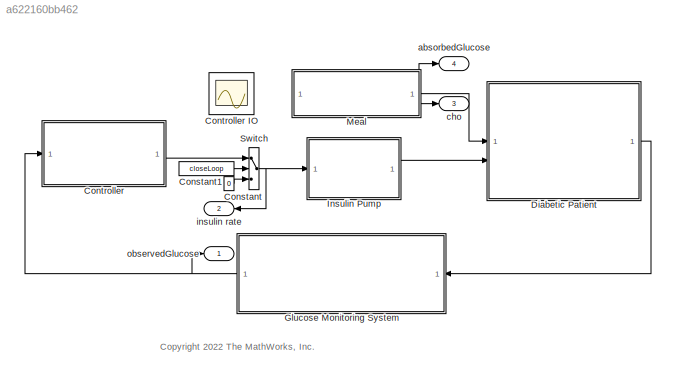
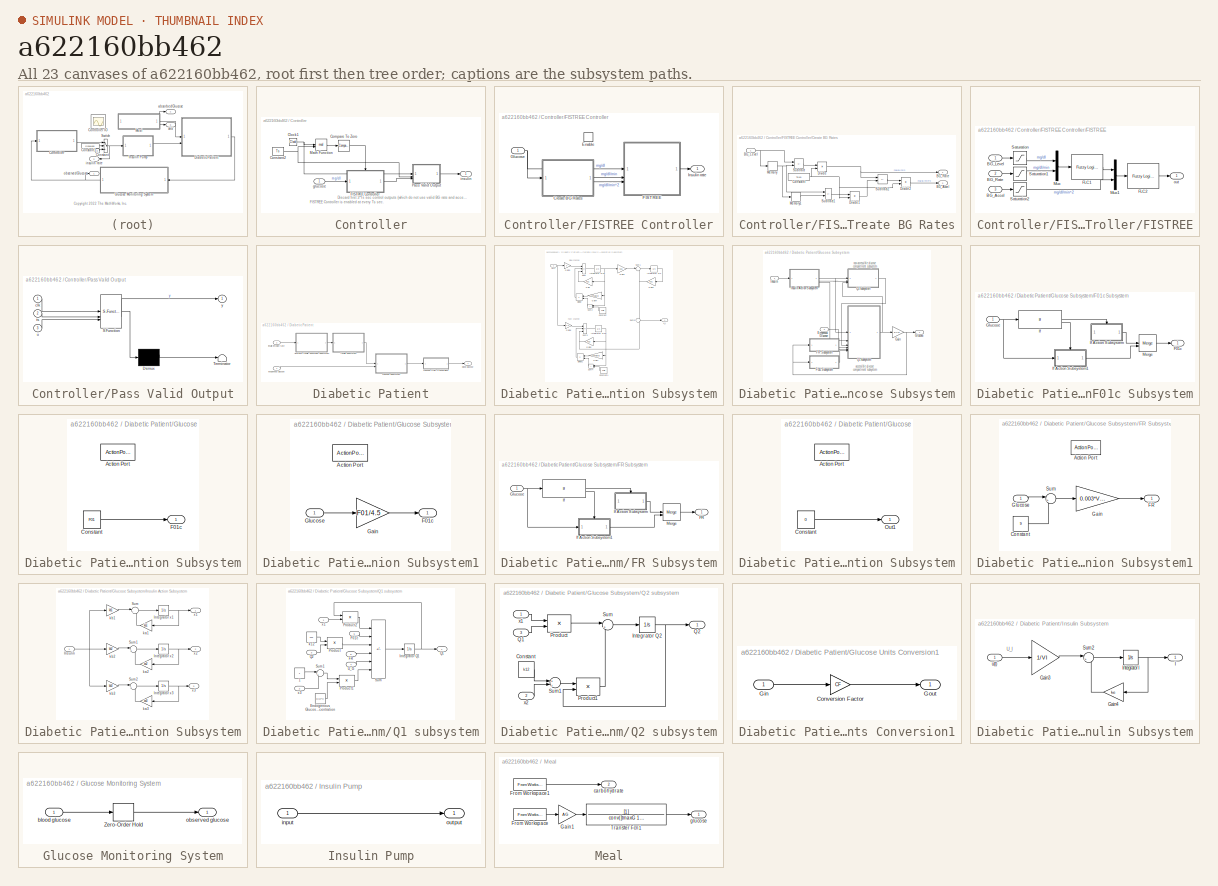
[diagram: thumbnail index - all 23 canvases of the model, root first then tree order]
MODEL slx_a622160bb462
KIND model
CONFIG AbsTol = auto
CONFIG EnableMultiTasking = on
CONFIG FixedStep = auto
CONFIG MaxStep = 100
CONFIG MinStep = auto
CONFIG PostLoadFcn = load warmStart\nWeight = 70;\nTs = 300;\ncloseLoop = 0;
CONFIG RelTol = 1e-6
CONFIG SampleTimeConstraint = Unconstrained
CONFIG SolverName = ode45
CONFIG StartTime = 0.0
CONFIG StopTime = 86400
BLOCK [Constant] Constant
  Value = 0
BLOCK [Constant] Constant1
  Value = closeLoop
BLOCK [SubSystem] Controller
BLOCK [Scope] Controller IO
  Floating = on
  NumInputPorts = 1
  ScopeSpecificationString = Simulink.scopes.TimeScopeBlockCfg('CurrentConfiguration', extmgr.ConfigurationSet(extmgr.Configuration('Core','General UI',true),extmgr.Configuration('Core','Source UI',true),extmgr.Configuration('Sources','WiredSimulink',true,'DataLoggingVariableName','ScopeData1'),extmgr.Configuration('Visuals','Time Domain',true,'SerializedDisplays',{struct('MinYLimReal','46.95353','MaxYLimReal','659.33506','YL...<+2745ch>
BLOCK [Clock] Controller/Clock1
BLOCK [Reference] Controller/Compare To Zero  REF=simulink/Logic and Bit
Operations/Compare
To Zero
  SourceBlock = simulink/Logic and Bit\nOperations/Compare\nTo Zero
  SourceType = Compare To Zero
BLOCK [Constant] Controller/Constant2
  Value = Ts
BLOCK [SubSystem] Controller/FISTREE Controller
  TreatAsAtomicUnit = on
BLOCK [SubSystem] Controller/FISTREE Controller/Create BG Rates
BLOCK [Outport] Controller/FISTREE Controller/Create BG Rates/BG_Accel
  Port = 2
BLOCK [Inport] Controller/FISTREE Controller/Create BG Rates/BG_Level
BLOCK [Outport] Controller/FISTREE Controller/Create BG Rates/BG_Rate
BLOCK [Constant] Controller/FISTREE Controller/Create BG Rates/Constant
  Value = Ts/60
BLOCK [Product] Controller/FISTREE Controller/Create BG Rates/Divide
  Inputs = */
BLOCK [Product] Controller/FISTREE Controller/Create BG Rates/Divide1
  Inputs = */
BLOCK [Product] Controller/FISTREE Controller/Create BG Rates/Divide2
  Inputs = */
BLOCK [Memory] Controller/FISTREE Controller/Create BG Rates/Memory
  InheritSampleTime = on
BLOCK [Memory] Controller/FISTREE Controller/Create BG Rates/Memory1
  InheritSampleTime = on
BLOCK [Sum] Controller/FISTREE Controller/Create BG Rates/Subtract
  IconShape = rectangular
  Inputs = +-
BLOCK [Sum] Controller/FISTREE Controller/Create BG Rates/Subtract1
  IconShape = rectangular
  Inputs = +-
BLOCK [Sum] Controller/FISTREE Controller/Create BG Rates/Subtract2
  IconShape = rectangular
  Inputs = +-
BLOCK [EnablePort] Controller/FISTREE Controller/Enable
BLOCK [SubSystem] Controller/FISTREE Controller/FISTREE
BLOCK [Inport] Controller/FISTREE Controller/FISTREE/BG_Accel
  Port = 3
BLOCK [Inport] Controller/FISTREE Controller/FISTREE/BG_Level
BLOCK [Inport] Controller/FISTREE Controller/FISTREE/BG_Rate
  Port = 2
BLOCK [Reference] Controller/FISTREE Controller/FISTREE/FLC1  REF=fuzblock/Fuzzy Logic   (lib defined in mdl_858b3b3e7478)
Controller
  SourceBlock = fuzblock/Fuzzy Logic \nController
  SourceType = Fuzzy Inference System
BLOCK [Reference] Controller/FISTREE Controller/FISTREE/FLC2  REF=fuzblock/Fuzzy Logic   (lib defined in mdl_858b3b3e7478)
Controller
  SourceBlock = fuzblock/Fuzzy Logic \nController
  SourceType = Fuzzy Inference System
BLOCK [Mux] Controller/FISTREE Controller/FISTREE/Mux
  DisplayOption = bar
  Inputs = 2
BLOCK [Mux] Controller/FISTREE Controller/FISTREE/Mux1
  DisplayOption = bar
  Inputs = 2
BLOCK [Saturate] Controller/FISTREE Controller/FISTREE/Saturation
  LinearizeAsGain = off
  LowerLimit = fisT.FIS(1).Inputs(1).Range(1)
  UpperLimit = fisT.FIS(1).Inputs(1).Range(2)
  ZeroCross = off
BLOCK [Saturate] Controller/FISTREE Controller/FISTREE/Saturation1
  LinearizeAsGain = off
  LowerLimit = fisT.FIS(1).Inputs(2).Range(1)
  UpperLimit = fisT.FIS(1).Inputs(2).Range(2)
  ZeroCross = off
BLOCK [Saturate] Controller/FISTREE Controller/FISTREE/Saturation2
  LinearizeAsGain = off
  LowerLimit = fisT.FIS(2).Inputs(2).Range(1)
  UpperLimit = fisT.FIS(2).Inputs(2).Range(2)
  ZeroCross = off
BLOCK [Outport] Controller/FISTREE Controller/FISTREE/out
BLOCK [Inport] Controller/FISTREE Controller/Glucose
BLOCK [Outport] Controller/FISTREE Controller/Insulin rate
BLOCK [Math] Controller/Math Function
  Operator = mod
BLOCK [SubSystem] Controller/Pass Valid Output
  ErrorFcn = Stateflow.Translate.translate
  PermitHierarchicalResolution = ExplicitOnly
  SFBlockType = MATLAB Function
  TreatAsAtomicUnit = on
BLOCK [Demux] Controller/Pass Valid Output/ Demux 
  Outputs = 1
BLOCK [S-Function] Controller/Pass Valid Output/ SFunction 
  EnableBusSupport = off
  FunctionName = sf_sfun
  PortCounts = [3 2]
  SFcnIsStateOwnerBlock = off
  SFunctionDeploymentMode = off
  Tag = Stateflow S-Function 5
BLOCK [Terminator] Controller/Pass Valid Output/ Terminator 
BLOCK [Inport] Controller/Pass Valid Output/clk
BLOCK [Inport] Controller/Pass Valid Output/ts
  Port = 2
BLOCK [Inport] Controller/Pass Valid Output/u
  Port = 3
BLOCK [Outport] Controller/Pass Valid Output/y
BLOCK [Inport] Controller/glucose
BLOCK [Outport] Controller/insulin
BLOCK [SubSystem] Diabetic Patient
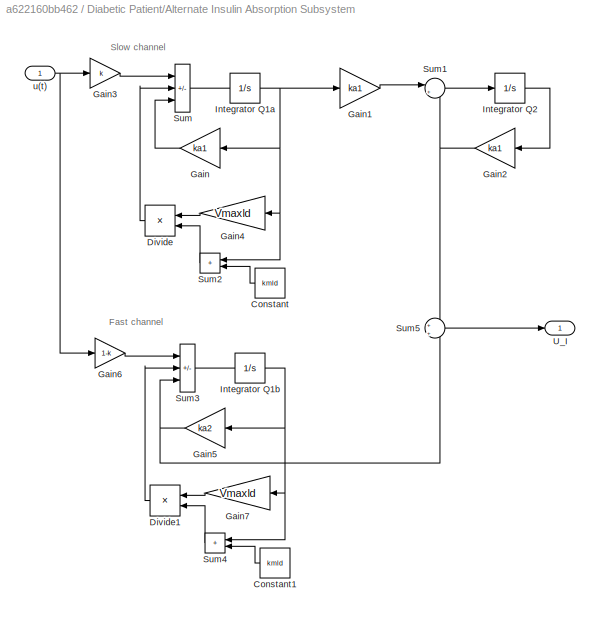
BLOCK [SubSystem] Diabetic Patient/Alternate Insulin Absorption Subsystem
BLOCK [Constant] Diabetic Patient/Alternate Insulin Absorption Subsystem/Constant
  Value = kmld
BLOCK [Constant] Diabetic Patient/Alternate Insulin Absorption Subsystem/Constant1
  Value = kmld
BLOCK [Product] Diabetic Patient/Alternate Insulin Absorption Subsystem/Divide
  Inputs = */
BLOCK [Product] Diabetic Patient/Alternate Insulin Absorption Subsystem/Divide1
  Inputs = */
BLOCK [Gain] Diabetic Patient/Alternate Insulin Absorption Subsystem/Gain
  Gain = ka1
  OutDataTypeStr = Inherit: Same as input
  ParamDataTypeStr = Inherit: Same as input
  SaturateOnIntegerOverflow = on
BLOCK [Gain] Diabetic Patient/Alternate Insulin Absorption Subsystem/Gain1
  Gain = ka1
  OutDataTypeStr = Inherit: Same as input
  ParamDataTypeStr = Inherit: Same as input
  SaturateOnIntegerOverflow = on
BLOCK [Gain] Diabetic Patient/Alternate Insulin Absorption Subsystem/Gain2
  Gain = ka1
  OutDataTypeStr = Inherit: Same as input
  ParamDataTypeStr = Inherit: Same as input
  SaturateOnIntegerOverflow = on
BLOCK [Gain] Diabetic Patient/Alternate Insulin Absorption Subsystem/Gain3
  Gain = k
BLOCK [Gain] Diabetic Patient/Alternate Insulin Absorption Subsystem/Gain4
  Gain = Vmaxld
  OutDataTypeStr = Inherit: Same as input
  ParamDataTypeStr = Inherit: Same as input
  SaturateOnIntegerOverflow = on
BLOCK [Gain] Diabetic Patient/Alternate Insulin Absorption Subsystem/Gain5
  Gain = ka2
  OutDataTypeStr = Inherit: Same as input
  ParamDataTypeStr = Inherit: Same as input
  SaturateOnIntegerOverflow = on
BLOCK [Gain] Diabetic Patient/Alternate Insulin Absorption Subsystem/Gain6
  Gain = 1-k
BLOCK [Gain] Diabetic Patient/Alternate Insulin Absorption Subsystem/Gain7
  Gain = Vmaxld
  OutDataTypeStr = Inherit: Same as input
  ParamDataTypeStr = Inherit: Same as input
  SaturateOnIntegerOverflow = on
BLOCK [Integrator] Diabetic Patient/Alternate Insulin Absorption Subsystem/Integrator Q1a
  InitialCondition = warmStart(3).values
BLOCK [Integrator] Diabetic Patient/Alternate Insulin Absorption Subsystem/Integrator Q1b
  InitialCondition = warmStart(4).values
BLOCK [Integrator] Diabetic Patient/Alternate Insulin Absorption Subsystem/Integrator Q2
  InitialCondition = warmStart(5).values
BLOCK [Sum] Diabetic Patient/Alternate Insulin Absorption Subsystem/Sum
  IconShape = rectangular
  Inputs = +--
  SaturateOnIntegerOverflow = on
BLOCK [Sum] Diabetic Patient/Alternate Insulin Absorption Subsystem/Sum1
  Inputs = |+-
  SaturateOnIntegerOverflow = on
BLOCK [Sum] Diabetic Patient/Alternate Insulin Absorption Subsystem/Sum2
  IconShape = rectangular
BLOCK [Sum] Diabetic Patient/Alternate Insulin Absorption Subsystem/Sum3
  IconShape = rectangular
  Inputs = +--
  SaturateOnIntegerOverflow = on
BLOCK [Sum] Diabetic Patient/Alternate Insulin Absorption Subsystem/Sum4
  IconShape = rectangular
BLOCK [Sum] Diabetic Patient/Alternate Insulin Absorption Subsystem/Sum5
  Inputs = +|+
BLOCK [Outport] Diabetic Patient/Alternate Insulin Absorption Subsystem/U_I
BLOCK [Inport] Diabetic Patient/Alternate Insulin Absorption Subsystem/u(t)
BLOCK [SubSystem] Diabetic Patient/Glucose Subsystem
BLOCK [Inport] Diabetic Patient/Glucose Subsystem/Exogenous Glucose
  Port = 2
BLOCK [SubSystem] Diabetic Patient/Glucose Subsystem/F01c Subsystem
BLOCK [Outport] Diabetic Patient/Glucose Subsystem/F01c Subsystem/F01c
BLOCK [Inport] Diabetic Patient/Glucose Subsystem/F01c Subsystem/Glucose
BLOCK [If] Diabetic Patient/Glucose Subsystem/F01c Subsystem/If
  IfExpression = u1 >= 4.5
BLOCK [SubSystem] Diabetic Patient/Glucose Subsystem/F01c Subsystem/If Action Subsystem
  TreatAsAtomicUnit = on
BLOCK [ActionPort] Diabetic Patient/Glucose Subsystem/F01c Subsystem/If Action Subsystem/Action Port
  ActionPortLabel = if(u1 >= 4.5)
BLOCK [Constant] Diabetic Patient/Glucose Subsystem/F01c Subsystem/If Action Subsystem/Constant
  Value = F01
BLOCK [Outport] Diabetic Patient/Glucose Subsystem/F01c Subsystem/If Action Subsystem/F01c
  InitialOutput = F01
BLOCK [SubSystem] Diabetic Patient/Glucose Subsystem/F01c Subsystem/If Action Subsystem1
  TreatAsAtomicUnit = on
BLOCK [ActionPort] Diabetic Patient/Glucose Subsystem/F01c Subsystem/If Action Subsystem1/Action Port
  ActionPortLabel = else
BLOCK [Outport] Diabetic Patient/Glucose Subsystem/F01c Subsystem/If Action Subsystem1/F01c
BLOCK [Gain] Diabetic Patient/Glucose Subsystem/F01c Subsystem/If Action Subsystem1/Gain
  Gain = F01/4.5
  OutDataTypeStr = Inherit: Same as input
  ParamDataTypeStr = Inherit: Same as input
  SaturateOnIntegerOverflow = on
BLOCK [Inport] Diabetic Patient/Glucose Subsystem/F01c Subsystem/If Action Subsystem1/Glucose
BLOCK [Merge] Diabetic Patient/Glucose Subsystem/F01c Subsystem/Merge
BLOCK [SubSystem] Diabetic Patient/Glucose Subsystem/FR Subsystem
BLOCK [Outport] Diabetic Patient/Glucose Subsystem/FR Subsystem/FR
BLOCK [Inport] Diabetic Patient/Glucose Subsystem/FR Subsystem/Glucose
BLOCK [If] Diabetic Patient/Glucose Subsystem/FR Subsystem/If
  IfExpression = u1 < 9
BLOCK [SubSystem] Diabetic Patient/Glucose Subsystem/FR Subsystem/If Action Subsystem
  TreatAsAtomicUnit = on
BLOCK [ActionPort] Diabetic Patient/Glucose Subsystem/FR Subsystem/If Action Subsystem/Action Port
  ActionPortLabel = if(u1 < 9)
BLOCK [Constant] Diabetic Patient/Glucose Subsystem/FR Subsystem/If Action Subsystem/Constant
  Value = 0
BLOCK [Outport] Diabetic Patient/Glucose Subsystem/FR Subsystem/If Action Subsystem/Out1
  InitialOutput = 0
BLOCK [SubSystem] Diabetic Patient/Glucose Subsystem/FR Subsystem/If Action Subsystem1
  TreatAsAtomicUnit = on
BLOCK [ActionPort] Diabetic Patient/Glucose Subsystem/FR Subsystem/If Action Subsystem1/Action Port
  ActionPortLabel = else
BLOCK [Constant] Diabetic Patient/Glucose Subsystem/FR Subsystem/If Action Subsystem1/Constant
  Value = 9
BLOCK [Outport] Diabetic Patient/Glucose Subsystem/FR Subsystem/If Action Subsystem1/FR
BLOCK [Gain] Diabetic Patient/Glucose Subsystem/FR Subsystem/If Action Subsystem1/Gain
  Gain = 0.003*VG/60
  OutDataTypeStr = Inherit: Same as input
  ParamDataTypeStr = Inherit: Same as input
  SaturateOnIntegerOverflow = on
BLOCK [Inport] Diabetic Patient/Glucose Subsystem/FR Subsystem/If Action Subsystem1/Glucose
BLOCK [Sum] Diabetic Patient/Glucose Subsystem/FR Subsystem/If Action Subsystem1/Sum
  Inputs = |+-
  SaturateOnIntegerOverflow = on
BLOCK [Merge] Diabetic Patient/Glucose Subsystem/FR Subsystem/Merge
BLOCK [Gain] Diabetic Patient/Glucose Subsystem/Gain
  Gain = 1/VG
  OutDataTypeStr = Inherit: Same as input
  ParamDataTypeStr = Inherit: Same as input
  SaturateOnIntegerOverflow = on
BLOCK [Outport] Diabetic Patient/Glucose Subsystem/Glucose
BLOCK [Inport] Diabetic Patient/Glucose Subsystem/Insulin
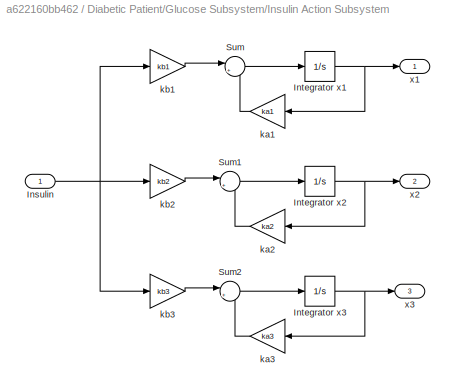
BLOCK [SubSystem] Diabetic Patient/Glucose Subsystem/Insulin Action Subsystem
BLOCK [Inport] Diabetic Patient/Glucose Subsystem/Insulin Action Subsystem/Insulin
BLOCK [Integrator] Diabetic Patient/Glucose Subsystem/Insulin Action Subsystem/Integrator x1
  InitialCondition = warmStart(6).values
BLOCK [Integrator] Diabetic Patient/Glucose Subsystem/Insulin Action Subsystem/Integrator x2
  InitialCondition = warmStart(7).values
BLOCK [Integrator] Diabetic Patient/Glucose Subsystem/Insulin Action Subsystem/Integrator x3
  InitialCondition = warmStart(8).values
BLOCK [Sum] Diabetic Patient/Glucose Subsystem/Insulin Action Subsystem/Sum
  Inputs = |+-
  SaturateOnIntegerOverflow = on
BLOCK [Sum] Diabetic Patient/Glucose Subsystem/Insulin Action Subsystem/Sum1
  Inputs = |+-
  SaturateOnIntegerOverflow = on
BLOCK [Sum] Diabetic Patient/Glucose Subsystem/Insulin Action Subsystem/Sum2
  Inputs = |+-
  SaturateOnIntegerOverflow = on
BLOCK [Gain] Diabetic Patient/Glucose Subsystem/Insulin Action Subsystem/ka1
  Gain = ka1
  OutDataTypeStr = Inherit: Same as input
  ParamDataTypeStr = Inherit: Same as input
  SaturateOnIntegerOverflow = on
BLOCK [Gain] Diabetic Patient/Glucose Subsystem/Insulin Action Subsystem/ka2
  Gain = ka2
  OutDataTypeStr = Inherit: Same as input
  ParamDataTypeStr = Inherit: Same as input
  SaturateOnIntegerOverflow = on
BLOCK [Gain] Diabetic Patient/Glucose Subsystem/Insulin Action Subsystem/ka3
  Gain = ka3
  OutDataTypeStr = Inherit: Same as input
  ParamDataTypeStr = Inherit: Same as input
  SaturateOnIntegerOverflow = on
BLOCK [Gain] Diabetic Patient/Glucose Subsystem/Insulin Action Subsystem/kb1
  Gain = kb1
  OutDataTypeStr = Inherit: Same as input
  ParamDataTypeStr = Inherit: Same as input
  SaturateOnIntegerOverflow = on
BLOCK [Gain] Diabetic Patient/Glucose Subsystem/Insulin Action Subsystem/kb2
  Gain = kb2
  OutDataTypeStr = Inherit: Same as input
  ParamDataTypeStr = Inherit: Same as input
  SaturateOnIntegerOverflow = on
BLOCK [Gain] Diabetic Patient/Glucose Subsystem/Insulin Action Subsystem/kb3
  Gain = kb3
  OutDataTypeStr = Inherit: Same as input
  ParamDataTypeStr = Inherit: Same as input
  SaturateOnIntegerOverflow = on
BLOCK [Outport] Diabetic Patient/Glucose Subsystem/Insulin Action Subsystem/x1
BLOCK [Outport] Diabetic Patient/Glucose Subsystem/Insulin Action Subsystem/x2
  Port = 2
BLOCK [Outport] Diabetic Patient/Glucose Subsystem/Insulin Action Subsystem/x3
  Port = 3
BLOCK [SubSystem] Diabetic Patient/Glucose Subsystem/Q1 subsystem
BLOCK [Constant] Diabetic Patient/Glucose Subsystem/Q1 subsystem/1
BLOCK [Constant] Diabetic Patient/Glucose Subsystem/Q1 subsystem/Endogenous Glucose Production extrapolated to zero insulin concentration
  Value = EGP0
BLOCK [Inport] Diabetic Patient/Glucose Subsystem/Q1 subsystem/F01c
  Port = 6
BLOCK [Inport] Diabetic Patient/Glucose Subsystem/Q1 subsystem/FR
  Port = 5
BLOCK [Integrator] Diabetic Patient/Glucose Subsystem/Q1 subsystem/Integrator Q1
  InitialCondition = warmStart(1).values
BLOCK [Product] Diabetic Patient/Glucose Subsystem/Q1 subsystem/Product
  OutDataTypeStr = Inherit: Same as first input
  SaturateOnIntegerOverflow = on
BLOCK [Product] Diabetic Patient/Glucose Subsystem/Q1 subsystem/Product1
  OutDataTypeStr = Inherit: Same as first input
  SaturateOnIntegerOverflow = on
BLOCK [Product] Diabetic Patient/Glucose Subsystem/Q1 subsystem/Product2
  OutDataTypeStr = Inherit: Same as first input
  SaturateOnIntegerOverflow = on
BLOCK [Outport] Diabetic Patient/Glucose Subsystem/Q1 subsystem/Q1
BLOCK [Inport] Diabetic Patient/Glucose Subsystem/Q1 subsystem/Q2
  Port = 3
BLOCK [Sum] Diabetic Patient/Glucose Subsystem/Q1 subsystem/Sum
  IconShape = rectangular
  Inputs = --+-++
  SaturateOnIntegerOverflow = on
BLOCK [Sum] Diabetic Patient/Glucose Subsystem/Q1 subsystem/Sum1
  Inputs = |+-
  SaturateOnIntegerOverflow = on
BLOCK [Inport] Diabetic Patient/Glucose Subsystem/Q1 subsystem/U_G
  Port = 4
BLOCK [Constant] Diabetic Patient/Glucose Subsystem/Q1 subsystem/k12
  Value = k12
BLOCK [Inport] Diabetic Patient/Glucose Subsystem/Q1 subsystem/x1
BLOCK [Inport] Diabetic Patient/Glucose Subsystem/Q1 subsystem/x3
  Port = 2
BLOCK [SubSystem] Diabetic Patient/Glucose Subsystem/Q2 subsystem
BLOCK [Constant] Diabetic Patient/Glucose Subsystem/Q2 subsystem/Constant
  Value = k12
BLOCK [Integrator] Diabetic Patient/Glucose Subsystem/Q2 subsystem/Integrator Q2
  InitialCondition = warmStart(9).values
BLOCK [Product] Diabetic Patient/Glucose Subsystem/Q2 subsystem/Product
  OutDataTypeStr = Inherit: Same as first input
  SaturateOnIntegerOverflow = on
BLOCK [Product] Diabetic Patient/Glucose Subsystem/Q2 subsystem/Product1
  OutDataTypeStr = Inherit: Same as first input
  SaturateOnIntegerOverflow = on
BLOCK [Inport] Diabetic Patient/Glucose Subsystem/Q2 subsystem/Q1
  Port = 3
BLOCK [Outport] Diabetic Patient/Glucose Subsystem/Q2 subsystem/Q2
BLOCK [Sum] Diabetic Patient/Glucose Subsystem/Q2 subsystem/Sum
  Inputs = |+-
  SaturateOnIntegerOverflow = on
BLOCK [Sum] Diabetic Patient/Glucose Subsystem/Q2 subsystem/Sum1
  Inputs = +|+
  SaturateOnIntegerOverflow = on
BLOCK [Inport] Diabetic Patient/Glucose Subsystem/Q2 subsystem/x1
BLOCK [Inport] Diabetic Patient/Glucose Subsystem/Q2 subsystem/x2
  Port = 2
BLOCK [SubSystem] Diabetic Patient/Glucose Units Conversion1
BLOCK [Gain] Diabetic Patient/Glucose Units Conversion1/Conversion Factor
  Gain = CF
  OutDataTypeStr = Inherit: Same as input
  ParamDataTypeStr = Inherit: Same as input
  SaturateOnIntegerOverflow = on
BLOCK [Inport] Diabetic Patient/Glucose Units Conversion1/Gin
BLOCK [Outport] Diabetic Patient/Glucose Units Conversion1/Gout
BLOCK [SubSystem] Diabetic Patient/Insulin Subsystem
BLOCK [Gain] Diabetic Patient/Insulin Subsystem/Gain3
  Gain = 1/VI
  OutDataTypeStr = Inherit: Same as input
  ParamDataTypeStr = Inherit: Same as input
  SaturateOnIntegerOverflow = on
BLOCK [Gain] Diabetic Patient/Insulin Subsystem/Gain4
  Gain = ke
  OutDataTypeStr = Inherit: Same as input
  ParamDataTypeStr = Inherit: Same as input
  SaturateOnIntegerOverflow = on
BLOCK [Outport] Diabetic Patient/Insulin Subsystem/I
BLOCK [Integrator] Diabetic Patient/Insulin Subsystem/Integrator I
  InitialCondition = warmStart(2).values
BLOCK [Sum] Diabetic Patient/Insulin Subsystem/Sum2
  Inputs = |+-
  SaturateOnIntegerOverflow = on
BLOCK [Inport] Diabetic Patient/Insulin Subsystem/u(t)
BLOCK [Outport] Diabetic Patient/blood glucose
BLOCK [Inport] Diabetic Patient/exogenous glucose
BLOCK [Inport] Diabetic Patient/insulin infusion rate
  Port = 2
BLOCK [SubSystem] Glucose Monitoring System
BLOCK [ZeroOrderHold] Glucose Monitoring System/Zero-Order Hold
  SampleTime = Ts
BLOCK [Inport] Glucose Monitoring System/blood glucose
BLOCK [Outport] Glucose Monitoring System/observed glucose
BLOCK [SubSystem] Insulin Pump
  TreatAsAtomicUnit = on
BLOCK [Inport] Insulin Pump/input
BLOCK [Outport] Insulin Pump/output
BLOCK [SubSystem] Meal
BLOCK [FromWorkspace] Meal/From Workspace
  OutputAfterFinalValue = Holding final value
  VariableName = vecs
BLOCK [FromWorkspace] Meal/From Workspace1
  OutputAfterFinalValue = Holding final value
  VariableName = evecs
BLOCK [Gain] Meal/Gain1
  Gain = AG
BLOCK [TransferFcn] Meal/Transfer Fcn1
  Denominator = conv([tmaxG 1],[tmaxG 1])
BLOCK [Outport] Meal/carbohydrate
  Port = 2
BLOCK [Outport] Meal/glucose
BLOCK [Switch] Switch
  Criteria = u2 ~= 0
  InputSameDT = off
  SaturateOnIntegerOverflow = off
BLOCK [Outport] absorbedGlucose
  Port = 4
BLOCK [Outport] cho
  Port = 3
BLOCK [Outport] insulin rate
  Port = 2
BLOCK [Outport] observedGlucose
ANNOTATION (root): <copyright redacted>
ANNOTATION Controller: Discard first 3*Ts sec control outputs (which do not use valid BG rate and accel data)
ANNOTATION Controller: FISTREE Controller is enabled at every Ts sec.
ANNOTATION Diabetic Patient/Alternate Insulin Absorption Subsystem: Fast channel
ANNOTATION Diabetic Patient/Alternate Insulin Absorption Subsystem: Slow channel
ANNOTATION Diabetic Patient/Glucose Subsystem: accessible glucose compartment subsystem
ANNOTATION Diabetic Patient/Glucose Subsystem: non-accessible glucose compartment subsystem
ANNOTATION Diabetic Patient/Insulin Subsystem: U_I
LINE Constant1:1 -> Switch:2
LINE Constant:1 -> Switch:3
NET Controller/Clock1:1 -> Controller/Math Function:1, Controller/Pass Valid Output:1
LINE Controller/Compare To Zero:1 -> Controller/FISTREE Controller:enable
NET Controller/Constant2:1 -> Controller/Math Function:2, Controller/Pass Valid Output:2
NET Controller/FISTREE Controller/Create BG Rates/BG_Level:1 -> Controller/FISTREE Controller/Create BG Rates/Memory:1, Controller/FISTREE Controller/Create BG Rates/Subtract:1
NET Controller/FISTREE Controller/Create BG Rates/Constant:1 -> Controller/FISTREE Controller/Create BG Rates/Divide1:2, Controller/FISTREE Controller/Create BG Rates/Divide2:2, Controller/FISTREE Controller/Create BG Rates/Divide:2
LINE Controller/FISTREE Controller/Create BG Rates/Divide1:1 -> Controller/FISTREE Controller/Create BG Rates/Subtract2:2
LINE Controller/FISTREE Controller/Create BG Rates/Divide2:1 -> Controller/FISTREE Controller/Create BG Rates/BG_Accel:1
NET Controller/FISTREE Controller/Create BG Rates/Divide:1 -> Controller/FISTREE Controller/Create BG Rates/BG_Rate:1, Controller/FISTREE Controller/Create BG Rates/Subtract2:1
LINE Controller/FISTREE Controller/Create BG Rates/Memory1:1 -> Controller/FISTREE Controller/Create BG Rates/Subtract1:2
NET Controller/FISTREE Controller/Create BG Rates/Memory:1 -> Controller/FISTREE Controller/Create BG Rates/Memory1:1, Controller/FISTREE Controller/Create BG Rates/Subtract1:1, Controller/FISTREE Controller/Create BG Rates/Subtract:2
LINE Controller/FISTREE Controller/Create BG Rates/Subtract1:1 -> Controller/FISTREE Controller/Create BG Rates/Divide1:1
LINE Controller/FISTREE Controller/Create BG Rates/Subtract2:1 -> Controller/FISTREE Controller/Create BG Rates/Divide2:1
LINE Controller/FISTREE Controller/Create BG Rates/Subtract:1 -> Controller/FISTREE Controller/Create BG Rates/Divide:1
LINE Controller/FISTREE Controller/Create BG Rates:1 -> Controller/FISTREE Controller/FISTREE:2
LINE Controller/FISTREE Controller/Create BG Rates:2 -> Controller/FISTREE Controller/FISTREE:3
LINE Controller/FISTREE Controller/FISTREE/BG_Accel:1 -> Controller/FISTREE Controller/FISTREE/Saturation2:1
LINE Controller/FISTREE Controller/FISTREE/BG_Level:1 -> Controller/FISTREE Controller/FISTREE/Saturation:1
LINE Controller/FISTREE Controller/FISTREE/BG_Rate:1 -> Controller/FISTREE Controller/FISTREE/Saturation1:1
LINE Controller/FISTREE Controller/FISTREE/FLC1:1 -> Controller/FISTREE Controller/FISTREE/Mux1:1
LINE Controller/FISTREE Controller/FISTREE/FLC2:1 -> Controller/FISTREE Controller/FISTREE/out:1
LINE Controller/FISTREE Controller/FISTREE/Mux1:1 -> Controller/FISTREE Controller/FISTREE/FLC2:1
LINE Controller/FISTREE Controller/FISTREE/Mux:1 -> Controller/FISTREE Controller/FISTREE/FLC1:1
LINE Controller/FISTREE Controller/FISTREE/Saturation1:1 -> Controller/FISTREE Controller/FISTREE/Mux:2
LINE Controller/FISTREE Controller/FISTREE/Saturation2:1 -> Controller/FISTREE Controller/FISTREE/Mux1:2
LINE Controller/FISTREE Controller/FISTREE/Saturation:1 -> Controller/FISTREE Controller/FISTREE/Mux:1
LINE Controller/FISTREE Controller/FISTREE:1 -> Controller/FISTREE Controller/Insulin rate:1
NET Controller/FISTREE Controller/Glucose:1 -> Controller/FISTREE Controller/Create BG Rates:1, Controller/FISTREE Controller/FISTREE:1
LINE Controller/FISTREE Controller:1 -> Controller/Pass Valid Output:3
LINE Controller/Math Function:1 -> Controller/Compare To Zero:1
LINE Controller/Pass Valid Output:1 -> Controller/insulin:1
LINE Controller/glucose:1 -> Controller/FISTREE Controller:1
LINE Controller:1 -> Switch:1
LINE Diabetic Patient/Alternate Insulin Absorption Subsystem/Constant1:1 -> Diabetic Patient/Alternate Insulin Absorption Subsystem/Sum4:2
LINE Diabetic Patient/Alternate Insulin Absorption Subsystem/Constant:1 -> Diabetic Patient/Alternate Insulin Absorption Subsystem/Sum2:2
LINE Diabetic Patient/Alternate Insulin Absorption Subsystem/Divide1:1 -> Diabetic Patient/Alternate Insulin Absorption Subsystem/Sum3:2
LINE Diabetic Patient/Alternate Insulin Absorption Subsystem/Divide:1 -> Diabetic Patient/Alternate Insulin Absorption Subsystem/Sum:2
LINE Diabetic Patient/Alternate Insulin Absorption Subsystem/Gain1:1 -> Diabetic Patient/Alternate Insulin Absorption Subsystem/Sum1:1
NET Diabetic Patient/Alternate Insulin Absorption Subsystem/Gain2:1 -> Diabetic Patient/Alternate Insulin Absorption Subsystem/Sum1:2, Diabetic Patient/Alternate Insulin Absorption Subsystem/Sum5:1
LINE Diabetic Patient/Alternate Insulin Absorption Subsystem/Gain3:1 -> Diabetic Patient/Alternate Insulin Absorption Subsystem/Sum:1
LINE Diabetic Patient/Alternate Insulin Absorption Subsystem/Gain4:1 -> Diabetic Patient/Alternate Insulin Absorption Subsystem/Divide:1
NET Diabetic Patient/Alternate Insulin Absorption Subsystem/Gain5:1 -> Diabetic Patient/Alternate Insulin Absorption Subsystem/Sum3:3, Diabetic Patient/Alternate Insulin Absorption Subsystem/Sum5:2
LINE Diabetic Patient/Alternate Insulin Absorption Subsystem/Gain6:1 -> Diabetic Patient/Alternate Insulin Absorption Subsystem/Sum3:1
LINE Diabetic Patient/Alternate Insulin Absorption Subsystem/Gain7:1 -> Diabetic Patient/Alternate Insulin Absorption Subsystem/Divide1:1
LINE Diabetic Patient/Alternate Insulin Absorption Subsystem/Gain:1 -> Diabetic Patient/Alternate Insulin Absorption Subsystem/Sum:3
NET Diabetic Patient/Alternate Insulin Absorption Subsystem/Integrator Q1a:1 -> Diabetic Patient/Alternate Insulin Absorption Subsystem/Gain1:1, Diabetic Patient/Alternate Insulin Absorption Subsystem/Gain4:1, Diabetic Patient/Alternate Insulin Absorption Subsystem/Gain:1, Diabetic Patient/Alternate Insulin Absorption Subsystem/Sum2:1
NET Diabetic Patient/Alternate Insulin Absorption Subsystem/Integrator Q1b:1 -> Diabetic Patient/Alternate Insulin Absorption Subsystem/Gain5:1, Diabetic Patient/Alternate Insulin Absorption Subsystem/Gain7:1, Diabetic Patient/Alternate Insulin Absorption Subsystem/Sum4:1
LINE Diabetic Patient/Alternate Insulin Absorption Subsystem/Integrator Q2:1 -> Diabetic Patient/Alternate Insulin Absorption Subsystem/Gain2:1
LINE Diabetic Patient/Alternate Insulin Absorption Subsystem/Sum1:1 -> Diabetic Patient/Alternate Insulin Absorption Subsystem/Integrator Q2:1
LINE Diabetic Patient/Alternate Insulin Absorption Subsystem/Sum2:1 -> Diabetic Patient/Alternate Insulin Absorption Subsystem/Divide:2
LINE Diabetic Patient/Alternate Insulin Absorption Subsystem/Sum3:1 -> Diabetic Patient/Alternate Insulin Absorption Subsystem/Integrator Q1b:1
LINE Diabetic Patient/Alternate Insulin Absorption Subsystem/Sum4:1 -> Diabetic Patient/Alternate Insulin Absorption Subsystem/Divide1:2
LINE Diabetic Patient/Alternate Insulin Absorption Subsystem/Sum5:1 -> Diabetic Patient/Alternate Insulin Absorption Subsystem/U_I:1
LINE Diabetic Patient/Alternate Insulin Absorption Subsystem/Sum:1 -> Diabetic Patient/Alternate Insulin Absorption Subsystem/Integrator Q1a:1
NET Diabetic Patient/Alternate Insulin Absorption Subsystem/u(t):1 -> Diabetic Patient/Alternate Insulin Absorption Subsystem/Gain3:1, Diabetic Patient/Alternate Insulin Absorption Subsystem/Gain6:1
LINE Diabetic Patient/Alternate Insulin Absorption Subsystem:1 -> Diabetic Patient/Insulin Subsystem:1
LINE Diabetic Patient/Glucose Subsystem/Exogenous Glucose:1 -> Diabetic Patient/Glucose Subsystem/Q1 subsystem:4
NET Diabetic Patient/Glucose Subsystem/F01c Subsystem/Glucose:1 -> Diabetic Patient/Glucose Subsystem/F01c Subsystem/If Action Subsystem1:1, Diabetic Patient/Glucose Subsystem/F01c Subsystem/If:1
LINE Diabetic Patient/Glucose Subsystem/F01c Subsystem/If Action Subsystem/Constant:1 -> Diabetic Patient/Glucose Subsystem/F01c Subsystem/If Action Subsystem/F01c:1
LINE Diabetic Patient/Glucose Subsystem/F01c Subsystem/If Action Subsystem1/Gain:1 -> Diabetic Patient/Glucose Subsystem/F01c Subsystem/If Action Subsystem1/F01c:1
LINE Diabetic Patient/Glucose Subsystem/F01c Subsystem/If Action Subsystem1/Glucose:1 -> Diabetic Patient/Glucose Subsystem/F01c Subsystem/If Action Subsystem1/Gain:1
LINE Diabetic Patient/Glucose Subsystem/F01c Subsystem/If Action Subsystem1:1 -> Diabetic Patient/Glucose Subsystem/F01c Subsystem/Merge:2
LINE Diabetic Patient/Glucose Subsystem/F01c Subsystem/If Action Subsystem:1 -> Diabetic Patient/Glucose Subsystem/F01c Subsystem/Merge:1
LINE Diabetic Patient/Glucose Subsystem/F01c Subsystem/If:1 -> Diabetic Patient/Glucose Subsystem/F01c Subsystem/If Action Subsystem:ifaction
LINE Diabetic Patient/Glucose Subsystem/F01c Subsystem/If:2 -> Diabetic Patient/Glucose Subsystem/F01c Subsystem/If Action Subsystem1:ifaction
LINE Diabetic Patient/Glucose Subsystem/F01c Subsystem/Merge:1 -> Diabetic Patient/Glucose Subsystem/F01c Subsystem/F01c:1
LINE Diabetic Patient/Glucose Subsystem/F01c Subsystem:1 -> Diabetic Patient/Glucose Subsystem/Q1 subsystem:6
NET Diabetic Patient/Glucose Subsystem/FR Subsystem/Glucose:1 -> Diabetic Patient/Glucose Subsystem/FR Subsystem/If Action Subsystem1:1, Diabetic Patient/Glucose Subsystem/FR Subsystem/If:1
LINE Diabetic Patient/Glucose Subsystem/FR Subsystem/If Action Subsystem/Constant:1 -> Diabetic Patient/Glucose Subsystem/FR Subsystem/If Action Subsystem/Out1:1
LINE Diabetic Patient/Glucose Subsystem/FR Subsystem/If Action Subsystem1/Constant:1 -> Diabetic Patient/Glucose Subsystem/FR Subsystem/If Action Subsystem1/Sum:2
LINE Diabetic Patient/Glucose Subsystem/FR Subsystem/If Action Subsystem1/Gain:1 -> Diabetic Patient/Glucose Subsystem/FR Subsystem/If Action Subsystem1/FR:1
LINE Diabetic Patient/Glucose Subsystem/FR Subsystem/If Action Subsystem1/Glucose:1 -> Diabetic Patient/Glucose Subsystem/FR Subsystem/If Action Subsystem1/Sum:1
LINE Diabetic Patient/Glucose Subsystem/FR Subsystem/If Action Subsystem1/Sum:1 -> Diabetic Patient/Glucose Subsystem/FR Subsystem/If Action Subsystem1/Gain:1
LINE Diabetic Patient/Glucose Subsystem/FR Subsystem/If Action Subsystem1:1 -> Diabetic Patient/Glucose Subsystem/FR Subsystem/Merge:2
LINE Diabetic Patient/Glucose Subsystem/FR Subsystem/If Action Subsystem:1 -> Diabetic Patient/Glucose Subsystem/FR Subsystem/Merge:1
LINE Diabetic Patient/Glucose Subsystem/FR Subsystem/If:1 -> Diabetic Patient/Glucose Subsystem/FR Subsystem/If Action Subsystem:ifaction
LINE Diabetic Patient/Glucose Subsystem/FR Subsystem/If:2 -> Diabetic Patient/Glucose Subsystem/FR Subsystem/If Action Subsystem1:ifaction
LINE Diabetic Patient/Glucose Subsystem/FR Subsystem/Merge:1 -> Diabetic Patient/Glucose Subsystem/FR Subsystem/FR:1
LINE Diabetic Patient/Glucose Subsystem/FR Subsystem:1 -> Diabetic Patient/Glucose Subsystem/Q1 subsystem:5
NET Diabetic Patient/Glucose Subsystem/Gain:1 -> Diabetic Patient/Glucose Subsystem/F01c Subsystem:1, Diabetic Patient/Glucose Subsystem/FR Subsystem:1, Diabetic Patient/Glucose Subsystem/Glucose:1
NET Diabetic Patient/Glucose Subsystem/Insulin Action Subsystem/Insulin:1 -> Diabetic Patient/Glucose Subsystem/Insulin Action Subsystem/kb1:1, Diabetic Patient/Glucose Subsystem/Insulin Action Subsystem/kb2:1, Diabetic Patient/Glucose Subsystem/Insulin Action Subsystem/kb3:1
NET Diabetic Patient/Glucose Subsystem/Insulin Action Subsystem/Integrator x1:1 -> Diabetic Patient/Glucose Subsystem/Insulin Action Subsystem/ka1:1, Diabetic Patient/Glucose Subsystem/Insulin Action Subsystem/x1:1
NET Diabetic Patient/Glucose Subsystem/Insulin Action Subsystem/Integrator x2:1 -> Diabetic Patient/Glucose Subsystem/Insulin Action Subsystem/ka2:1, Diabetic Patient/Glucose Subsystem/Insulin Action Subsystem/x2:1
NET Diabetic Patient/Glucose Subsystem/Insulin Action Subsystem/Integrator x3:1 -> Diabetic Patient/Glucose Subsystem/Insulin Action Subsystem/ka3:1, Diabetic Patient/Glucose Subsystem/Insulin Action Subsystem/x3:1
LINE Diabetic Patient/Glucose Subsystem/Insulin Action Subsystem/Sum1:1 -> Diabetic Patient/Glucose Subsystem/Insulin Action Subsystem/Integrator x2:1
LINE Diabetic Patient/Glucose Subsystem/Insulin Action Subsystem/Sum2:1 -> Diabetic Patient/Glucose Subsystem/Insulin Action Subsystem/Integrator x3:1
LINE Diabetic Patient/Glucose Subsystem/Insulin Action Subsystem/Sum:1 -> Diabetic Patient/Glucose Subsystem/Insulin Action Subsystem/Integrator x1:1
LINE Diabetic Patient/Glucose Subsystem/Insulin Action Subsystem/ka1:1 -> Diabetic Patient/Glucose Subsystem/Insulin Action Subsystem/Sum:2
LINE Diabetic Patient/Glucose Subsystem/Insulin Action Subsystem/ka2:1 -> Diabetic Patient/Glucose Subsystem/Insulin Action Subsystem/Sum1:2
LINE Diabetic Patient/Glucose Subsystem/Insulin Action Subsystem/ka3:1 -> Diabetic Patient/Glucose Subsystem/Insulin Action Subsystem/Sum2:2
LINE Diabetic Patient/Glucose Subsystem/Insulin Action Subsystem/kb1:1 -> Diabetic Patient/Glucose Subsystem/Insulin Action Subsystem/Sum:1
LINE Diabetic Patient/Glucose Subsystem/Insulin Action Subsystem/kb2:1 -> Diabetic Patient/Glucose Subsystem/Insulin Action Subsystem/Sum1:1
LINE Diabetic Patient/Glucose Subsystem/Insulin Action Subsystem/kb3:1 -> Diabetic Patient/Glucose Subsystem/Insulin Action Subsystem/Sum2:1
NET Diabetic Patient/Glucose Subsystem/Insulin Action Subsystem:1 -> Diabetic Patient/Glucose Subsystem/Q1 subsystem:1, Diabetic Patient/Glucose Subsystem/Q2 subsystem:1
LINE Diabetic Patient/Glucose Subsystem/Insulin Action Subsystem:2 -> Diabetic Patient/Glucose Subsystem/Q2 subsystem:2
LINE Diabetic Patient/Glucose Subsystem/Insulin Action Subsystem:3 -> Diabetic Patient/Glucose Subsystem/Q1 subsystem:2
LINE Diabetic Patient/Glucose Subsystem/Insulin:1 -> Diabetic Patient/Glucose Subsystem/Insulin Action Subsystem:1
LINE Diabetic Patient/Glucose Subsystem/Q1 subsystem/1:1 -> Diabetic Patient/Glucose Subsystem/Q1 subsystem/Sum1:1
LINE Diabetic Patient/Glucose Subsystem/Q1 subsystem/Endogenous Glucose Production extrapolated to zero insulin concentration:1 -> Diabetic Patient/Glucose Subsystem/Q1 subsystem/Product1:2
LINE Diabetic Patient/Glucose Subsystem/Q1 subsystem/F01c:1 -> Diabetic Patient/Glucose Subsystem/Q1 subsystem/Sum:2
LINE Diabetic Patient/Glucose Subsystem/Q1 subsystem/FR:1 -> Diabetic Patient/Glucose Subsystem/Q1 subsystem/Sum:4
NET Diabetic Patient/Glucose Subsystem/Q1 subsystem/Integrator Q1:1 -> Diabetic Patient/Glucose Subsystem/Q1 subsystem/Product2:1, Diabetic Patient/Glucose Subsystem/Q1 subsystem/Q1:1
LINE Diabetic Patient/Glucose Subsystem/Q1 subsystem/Product1:1 -> Diabetic Patient/Glucose Subsystem/Q1 subsystem/Sum:6
LINE Diabetic Patient/Glucose Subsystem/Q1 subsystem/Product2:1 -> Diabetic Patient/Glucose Subsystem/Q1 subsystem/Sum:1
LINE Diabetic Patient/Glucose Subsystem/Q1 subsystem/Product:1 -> Diabetic Patient/Glucose Subsystem/Q1 subsystem/Sum:3
LINE Diabetic Patient/Glucose Subsystem/Q1 subsystem/Q2:1 -> Diabetic Patient/Glucose Subsystem/Q1 subsystem/Product:2
LINE Diabetic Patient/Glucose Subsystem/Q1 subsystem/Sum1:1 -> Diabetic Patient/Glucose Subsystem/Q1 subsystem/Product1:1
LINE Diabetic Patient/Glucose Subsystem/Q1 subsystem/Sum:1 -> Diabetic Patient/Glucose Subsystem/Q1 subsystem/Integrator Q1:1
LINE Diabetic Patient/Glucose Subsystem/Q1 subsystem/U_G:1 -> Diabetic Patient/Glucose Subsystem/Q1 subsystem/Sum:5
LINE Diabetic Patient/Glucose Subsystem/Q1 subsystem/k12:1 -> Diabetic Patient/Glucose Subsystem/Q1 subsystem/Product:1
LINE Diabetic Patient/Glucose Subsystem/Q1 subsystem/x1:1 -> Diabetic Patient/Glucose Subsystem/Q1 subsystem/Product2:2
LINE Diabetic Patient/Glucose Subsystem/Q1 subsystem/x3:1 -> Diabetic Patient/Glucose Subsystem/Q1 subsystem/Sum1:2
NET Diabetic Patient/Glucose Subsystem/Q1 subsystem:1 -> Diabetic Patient/Glucose Subsystem/Gain:1, Diabetic Patient/Glucose Subsystem/Q2 subsystem:3
LINE Diabetic Patient/Glucose Subsystem/Q2 subsystem/Constant:1 -> Diabetic Patient/Glucose Subsystem/Q2 subsystem/Sum1:1
NET Diabetic Patient/Glucose Subsystem/Q2 subsystem/Integrator Q2:1 -> Diabetic Patient/Glucose Subsystem/Q2 subsystem/Product1:2, Diabetic Patient/Glucose Subsystem/Q2 subsystem/Q2:1
LINE Diabetic Patient/Glucose Subsystem/Q2 subsystem/Product1:1 -> Diabetic Patient/Glucose Subsystem/Q2 subsystem/Sum:2
LINE Diabetic Patient/Glucose Subsystem/Q2 subsystem/Product:1 -> Diabetic Patient/Glucose Subsystem/Q2 subsystem/Sum:1
LINE Diabetic Patient/Glucose Subsystem/Q2 subsystem/Q1:1 -> Diabetic Patient/Glucose Subsystem/Q2 subsystem/Product:2
LINE Diabetic Patient/Glucose Subsystem/Q2 subsystem/Sum1:1 -> Diabetic Patient/Glucose Subsystem/Q2 subsystem/Product1:1
LINE Diabetic Patient/Glucose Subsystem/Q2 subsystem/Sum:1 -> Diabetic Patient/Glucose Subsystem/Q2 subsystem/Integrator Q2:1
LINE Diabetic Patient/Glucose Subsystem/Q2 subsystem/x1:1 -> Diabetic Patient/Glucose Subsystem/Q2 subsystem/Product:1
LINE Diabetic Patient/Glucose Subsystem/Q2 subsystem/x2:1 -> Diabetic Patient/Glucose Subsystem/Q2 subsystem/Sum1:2
LINE Diabetic Patient/Glucose Subsystem/Q2 subsystem:1 -> Diabetic Patient/Glucose Subsystem/Q1 subsystem:3
LINE Diabetic Patient/Glucose Subsystem:1 -> Diabetic Patient/Glucose Units Conversion1:1
LINE Diabetic Patient/Glucose Units Conversion1:1 -> Diabetic Patient/blood glucose:1
LINE Diabetic Patient/Insulin Subsystem/Gain3:1 -> Diabetic Patient/Insulin Subsystem/Sum2:1
LINE Diabetic Patient/Insulin Subsystem/Gain4:1 -> Diabetic Patient/Insulin Subsystem/Sum2:2
NET Diabetic Patient/Insulin Subsystem/Integrator I:1 -> Diabetic Patient/Insulin Subsystem/Gain4:1, Diabetic Patient/Insulin Subsystem/I:1
LINE Diabetic Patient/Insulin Subsystem/Sum2:1 -> Diabetic Patient/Insulin Subsystem/Integrator I:1
LINE Diabetic Patient/Insulin Subsystem/u(t):1 -> Diabetic Patient/Insulin Subsystem/Gain3:1
LINE Diabetic Patient/Insulin Subsystem:1 -> Diabetic Patient/Glucose Subsystem:1
LINE Diabetic Patient/exogenous glucose:1 -> Diabetic Patient/Glucose Subsystem:2
LINE Diabetic Patient/insulin infusion rate:1 -> Diabetic Patient/Alternate Insulin Absorption Subsystem:1
LINE Diabetic Patient:1 -> Glucose Monitoring System:1
LINE Glucose Monitoring System/Zero-Order Hold:1 -> Glucose Monitoring System/observed glucose:1
LINE Glucose Monitoring System/blood glucose:1 -> Glucose Monitoring System/Zero-Order Hold:1
NET Glucose Monitoring System:1 -> Controller:1, observedGlucose:1
LINE Insulin Pump/input:1 -> Insulin Pump/output:1
LINE Insulin Pump:1 -> Diabetic Patient:2
LINE Meal/From Workspace1:1 -> Meal/carbohydrate:1
LINE Meal/From Workspace:1 -> Meal/Gain1:1
LINE Meal/Gain1:1 -> Meal/Transfer Fcn1:1
LINE Meal/Transfer Fcn1:1 -> Meal/glucose:1
NET Meal:1 -> Diabetic Patient:1, absorbedGlucose:1
LINE Meal:2 -> cho:1
NET Switch:1 -> Insulin Pump:1, insulin rate:1
note: NET lines group one-source signal fan-out (src -> all destinations, sorted); 1:1 wires keep LINE
CHART Controller/Pass Valid Output states=1 transitions=1
  STATE_LABEL 'eML_blk_kernel()'
  STATE_LABEL 'SCRIPT:\nfunction y = fcn(clk,ts,u)\n\nif clk < 3*ts\n    y = 0;\nelse\n    y = u;\nend\n'
CHART  states=0 transitions=0
